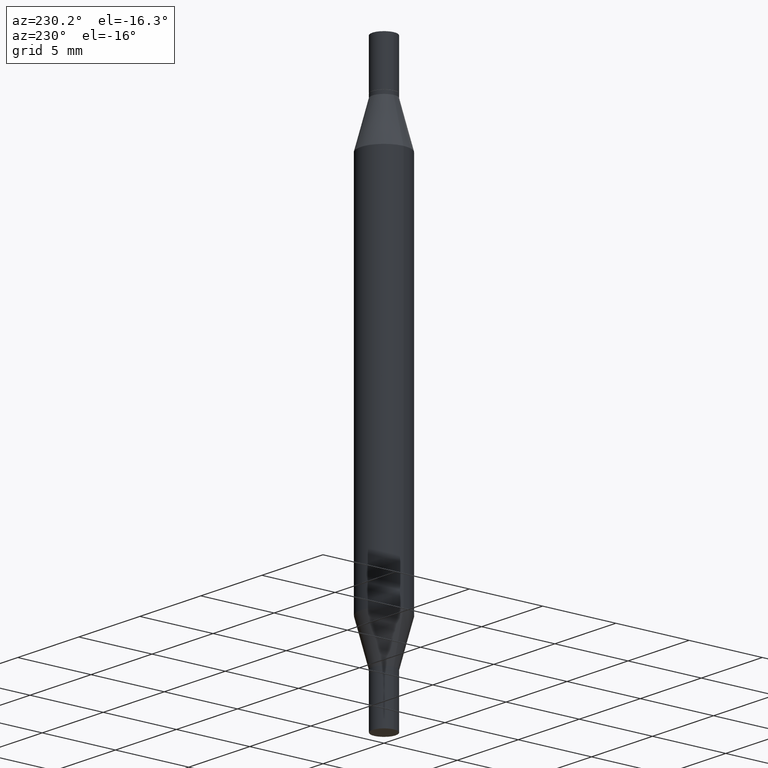
[diagram: clean part render]
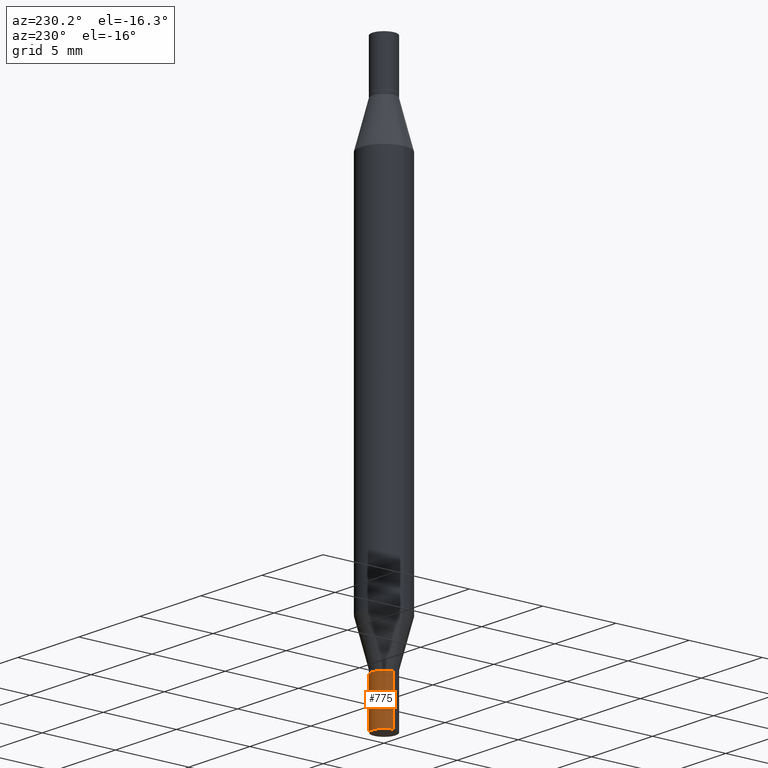
[diagram: same view with one face highlighted and labeled with its STEP entity id]
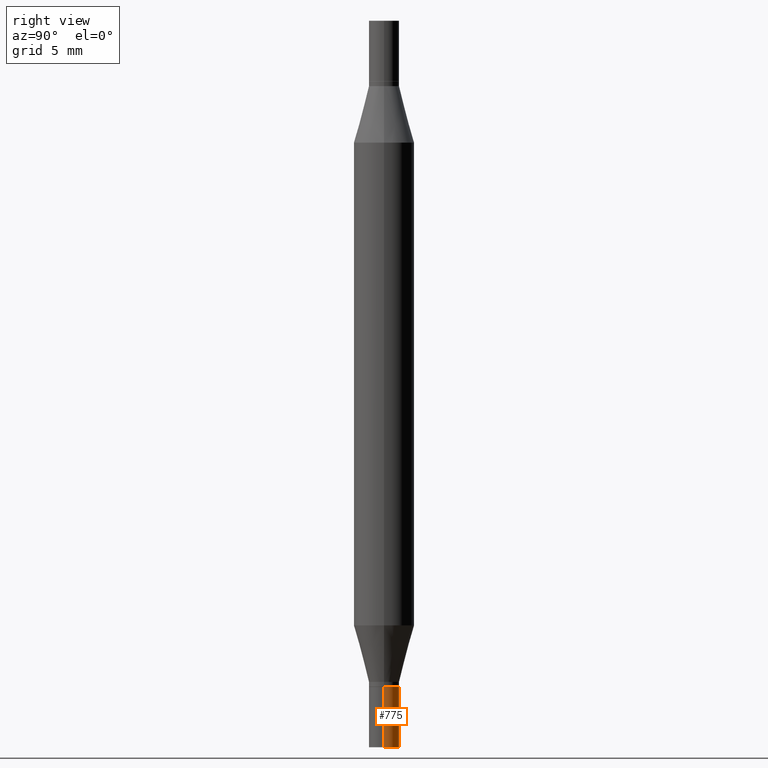
[diagram: same view with one face highlighted and labeled with its STEP entity id]
A machine part, auxiliary view. The second image highlights one B-rep face of the part: STEP entity #775.
A second angle (right view) of the same face is appended — the face is thin or edge-on in the first view.
In plain terms, the highlighted cylindrical surface (edge-blend (fillet) strip) has radius 0.7937 mm, axis along (-0, 0, 1).
Its self-contained STEP definition (entity closure, byte-faithful):
#24 = DIRECTION ( 'NONE',  ( 1.000000000000000000, -6.982962677686262766E-15, 0.000000000000000000 ) ) ;
#26 = AXIS2_PLACEMENT_3D ( 'NONE', #52, #116, #784 ) ;
#52 = CARTESIAN_POINT ( 'NONE',  ( 3.668203209277704895E-29, -5.237222008264718177E-15, -1.500000000000000222 ) ) ;
#61 = CARTESIAN_POINT ( 'NONE',  ( -0.03125000000000000000, 2.220446049250313081E-16, -1.537167215704658057E-30 ) ) ;
#82 = AXIS2_PLACEMENT_3D ( 'NONE', #545, #539, #24 ) ;
#116 = DIRECTION ( 'NONE',  ( -2.445468806185136597E-29, 3.491481338843145583E-15, 1.000000000000000000 ) ) ;
#129 = DIRECTION ( 'NONE',  ( -2.445468806185136877E-29, 3.491481338843145188E-15, 1.000000000000000000 ) ) ;
#177 = ORIENTED_EDGE ( 'NONE', *, *, #876, .T. ) ;
#182 = VERTEX_POINT ( 'NONE', #669 ) ;
#210 = DIRECTION ( 'NONE',  ( -2.445468806185136877E-29, 3.491481338843145188E-15, 1.000000000000000000 ) ) ;
#241 = VERTEX_POINT ( 'NONE', #348 ) ;
#253 = ORIENTED_EDGE ( 'NONE', *, *, #287, .T. ) ;
#270 = VERTEX_POINT ( 'NONE', #938 ) ;
#287 = EDGE_CURVE ( 'NONE', #866, #270, #421, .T. ) ;
#333 = CARTESIAN_POINT ( 'NONE',  ( 0.000000000000000000, 0.000000000000000000, 0.000000000000000000 ) ) ;
#347 = CYLINDRICAL_SURFACE ( 'NONE', #620, 0.03125000000000000000 ) ;
#348 = CARTESIAN_POINT ( 'NONE',  ( 0.03125000000000000000, -5.019004424587021553E-15, -1.375000000000000222 ) ) ;
#411 = EDGE_LOOP ( 'NONE', ( #253, #177, #630, #895 ) ) ;
#421 = CIRCLE ( 'NONE', #26, 0.03125000000000000000 ) ;
#437 = LINE ( 'NONE', #908, #508 ) ;
#475 = EDGE_CURVE ( 'NONE', #866, #241, #437, .T. ) ;
#508 = VECTOR ( 'NONE', #210, 39.37007874015748143 ) ;
#539 = DIRECTION ( 'NONE',  ( -2.445468806185136597E-29, 3.491481338843145583E-15, 1.000000000000000000 ) ) ;
#545 = CARTESIAN_POINT ( 'NONE',  ( 3.362519608504562821E-29, -4.800786840909326507E-15, -1.375000000000000222 ) ) ;
#583 = DIRECTION ( 'NONE',  ( -2.445468806185136597E-29, 3.491481338843145583E-15, 1.000000000000000000 ) ) ;
#584 = EDGE_CURVE ( 'NONE', #241, #182, #606, .T. ) ;
#601 = VECTOR ( 'NONE', #129, 39.37007874015748143 ) ;
#606 = CIRCLE ( 'NONE', #82, 0.03125000000000000000 ) ;
#620 = AXIS2_PLACEMENT_3D ( 'NONE', #333, #583, #949 ) ;
#630 = ORIENTED_EDGE ( 'NONE', *, *, #584, .F. ) ;
#669 = CARTESIAN_POINT ( 'NONE',  ( -0.03125000000000000000, -4.796959819661991034E-15, -1.375000000000000222 ) ) ;
#775 = ADVANCED_FACE ( 'NONE', ( #953 ), #347, .T. ) ;
#784 = DIRECTION ( 'NONE',  ( 1.000000000000000000, -6.982962677686262766E-15, 0.000000000000000000 ) ) ;
#815 = CARTESIAN_POINT ( 'NONE',  ( 0.03125000000000000000, -5.455439591942414011E-15, -1.500000000000000222 ) ) ;
#866 = VERTEX_POINT ( 'NONE', #815 ) ;
#876 = EDGE_CURVE ( 'NONE', #270, #182, #885, .T. ) ;
#885 = LINE ( 'NONE', #61, #601 ) ;
#895 = ORIENTED_EDGE ( 'NONE', *, *, #475, .F. ) ;
#908 = CARTESIAN_POINT ( 'NONE',  ( 0.03125000000000000000, -2.182175836776958347E-16, 1.523805242436229935E-30 ) ) ;
#938 = CARTESIAN_POINT ( 'NONE',  ( -0.03125000000000000000, -4.796959819661991034E-15, -1.500000000000000222 ) ) ;
#949 = DIRECTION ( 'NONE',  ( 1.000000000000000000, -6.982962677686266711E-15, 4.876176775795935793E-29 ) ) ;
#953 = FACE_OUTER_BOUND ( 'NONE', #411, .T. ) ;